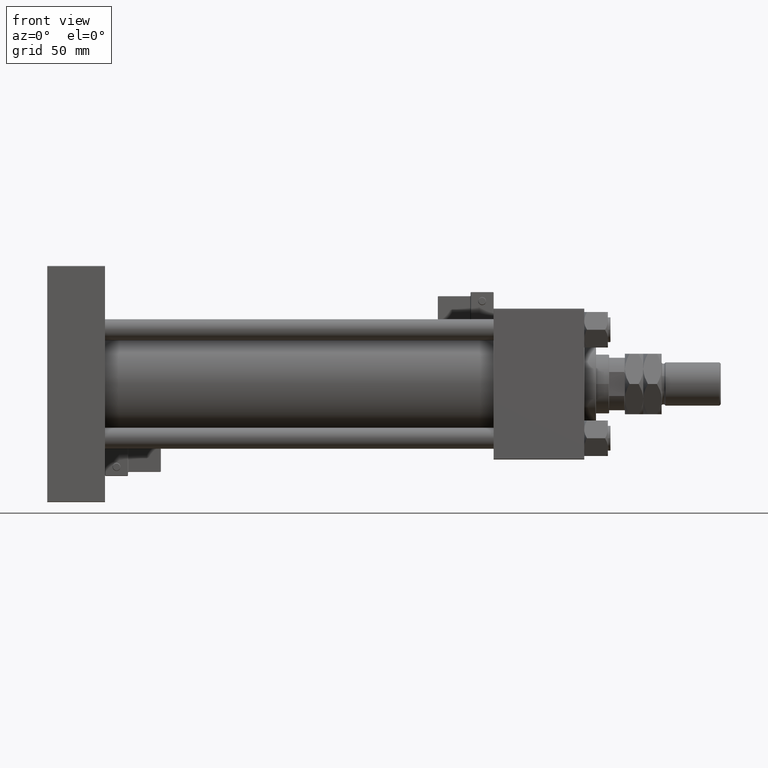
[diagram: clean part render]
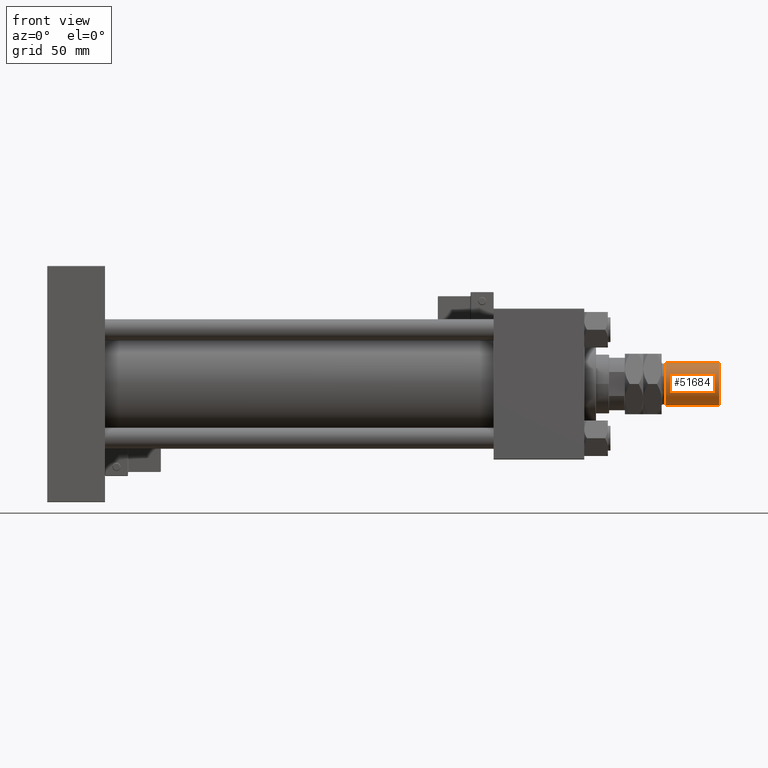
[diagram: same view with one face highlighted and labeled with its STEP entity id]
A machine part, front view. The second image highlights one B-rep face of the part: STEP entity #51684.
In plain terms, the highlighted cylindrical surface (edge-blend (fillet) strip) has radius 16.5 mm, axis along (-1, -0, 0).
Its self-contained STEP definition (entity closure, byte-faithful):
#287 = ORIENTED_EDGE ( 'NONE', *, *, #50036, .T. ) ;
#492 = CIRCLE ( 'NONE', #7784, 16.50000000000000000 ) ;
#1465 = AXIS2_PLACEMENT_3D ( 'NONE', #40230, #22304, #4337 ) ;
#4047 = CARTESIAN_POINT ( 'NONE',  ( 16.50000000000000000, 2.020667218593133100E-15, 30.99999999999998579 ) ) ;
#4247 = ORIENTED_EDGE ( 'NONE', *, *, #29754, .F. ) ;
#4337 = DIRECTION ( 'NONE',  ( -1.000000000000000000, 0.000000000000000000, 0.000000000000000000 ) ) ;
#4900 = VERTEX_POINT ( 'NONE', #9218 ) ;
#5719 = CARTESIAN_POINT ( 'NONE',  ( -16.50000000000000000, 0.000000000000000000, 30.99999999999998579 ) ) ;
#6851 = VECTOR ( 'NONE', #43110, 1000.000000000000000 ) ;
#7784 = AXIS2_PLACEMENT_3D ( 'NONE', #48992, #31889, #49261 ) ;
#8290 = CARTESIAN_POINT ( 'NONE',  ( 16.50000000000000000, 2.020667218593133100E-15, 73.00000000000000000 ) ) ;
#9218 = CARTESIAN_POINT ( 'NONE',  ( -16.50000000000000000, 0.000000000000000000, 72.00000000000000000 ) ) ;
#12897 = CYLINDRICAL_SURFACE ( 'NONE', #1465, 16.50000000000000000 ) ;
#16104 = VERTEX_POINT ( 'NONE', #17528 ) ;
#17448 = DIRECTION ( 'NONE',  ( 1.000000000000000000, 0.000000000000000000, 0.000000000000000000 ) ) ;
#17528 = CARTESIAN_POINT ( 'NONE',  ( 16.50000000000000000, 2.020667218593133100E-15, 72.00000000000000000 ) ) ;
#19527 = CIRCLE ( 'NONE', #24075, 16.50000000000000000 ) ;
#20353 = VERTEX_POINT ( 'NONE', #4047 ) ;
#22304 = DIRECTION ( 'NONE',  ( -0.000000000000000000, -0.000000000000000000, -1.000000000000000000 ) ) ;
#24075 = AXIS2_PLACEMENT_3D ( 'NONE', #31115, #43928, #17448 ) ;
#29754 = EDGE_CURVE ( 'NONE', #16104, #20353, #34523, .T. ) ;
#31115 = CARTESIAN_POINT ( 'NONE',  ( 0.000000000000000000, 0.000000000000000000, 30.99999999999998579 ) ) ;
#31889 = DIRECTION ( 'NONE',  ( 0.000000000000000000, 0.000000000000000000, -1.000000000000000000 ) ) ;
#34523 = LINE ( 'NONE', #8290, #54321 ) ;
#36567 = EDGE_LOOP ( 'NONE', ( #4247, #41877, #287, #55850 ) ) ;
#40230 = CARTESIAN_POINT ( 'NONE',  ( 0.000000000000000000, 0.000000000000000000, 73.00000000000000000 ) ) ;
#41877 = ORIENTED_EDGE ( 'NONE', *, *, #51337, .T. ) ;
#43110 = DIRECTION ( 'NONE',  ( -0.000000000000000000, -0.000000000000000000, -1.000000000000000000 ) ) ;
#43928 = DIRECTION ( 'NONE',  ( -0.000000000000000000, -0.000000000000000000, 1.000000000000000000 ) ) ;
#48334 = EDGE_CURVE ( 'NONE', #55992, #20353, #19527, .T. ) ;
#48992 = CARTESIAN_POINT ( 'NONE',  ( 0.000000000000000000, 0.000000000000000000, 72.00000000000000000 ) ) ;
#49261 = DIRECTION ( 'NONE',  ( 1.000000000000000000, 0.000000000000000000, 0.000000000000000000 ) ) ;
#50036 = EDGE_CURVE ( 'NONE', #4900, #55992, #51108, .T. ) ;
#51108 = LINE ( 'NONE', #51938, #6851 ) ;
#51337 = EDGE_CURVE ( 'NONE', #16104, #4900, #492, .T. ) ;
#51344 = DIRECTION ( 'NONE',  ( -0.000000000000000000, -0.000000000000000000, -1.000000000000000000 ) ) ;
#51684 = ADVANCED_FACE ( 'NONE', ( #52510 ), #12897, .T. ) ;
#51938 = CARTESIAN_POINT ( 'NONE',  ( -16.50000000000000000, 0.000000000000000000, 73.00000000000000000 ) ) ;
#52510 = FACE_OUTER_BOUND ( 'NONE', #36567, .T. ) ;
#54321 = VECTOR ( 'NONE', #51344, 1000.000000000000000 ) ;
#55850 = ORIENTED_EDGE ( 'NONE', *, *, #48334, .T. ) ;
#55992 = VERTEX_POINT ( 'NONE', #5719 ) ;